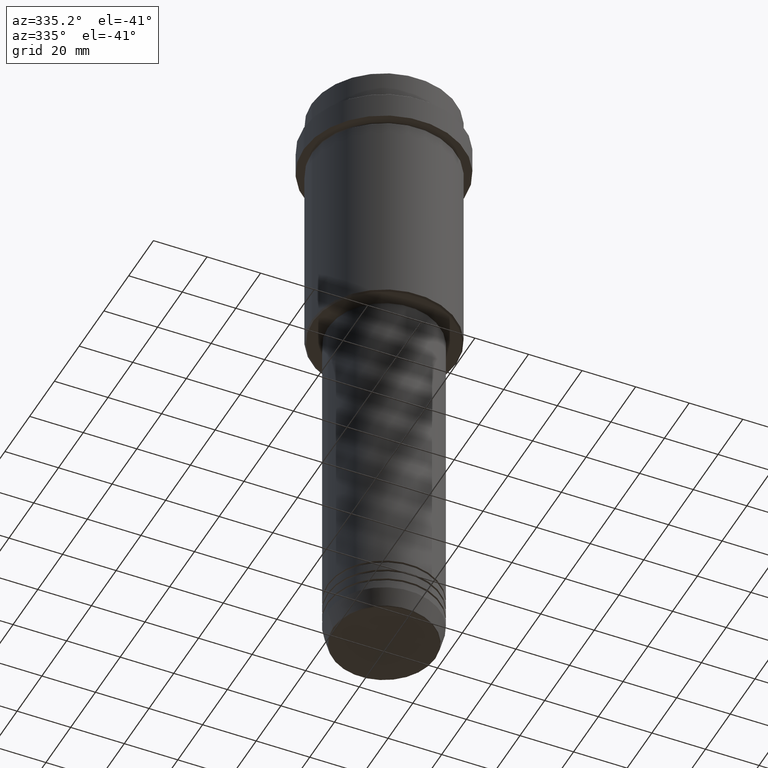
[diagram: clean part render]
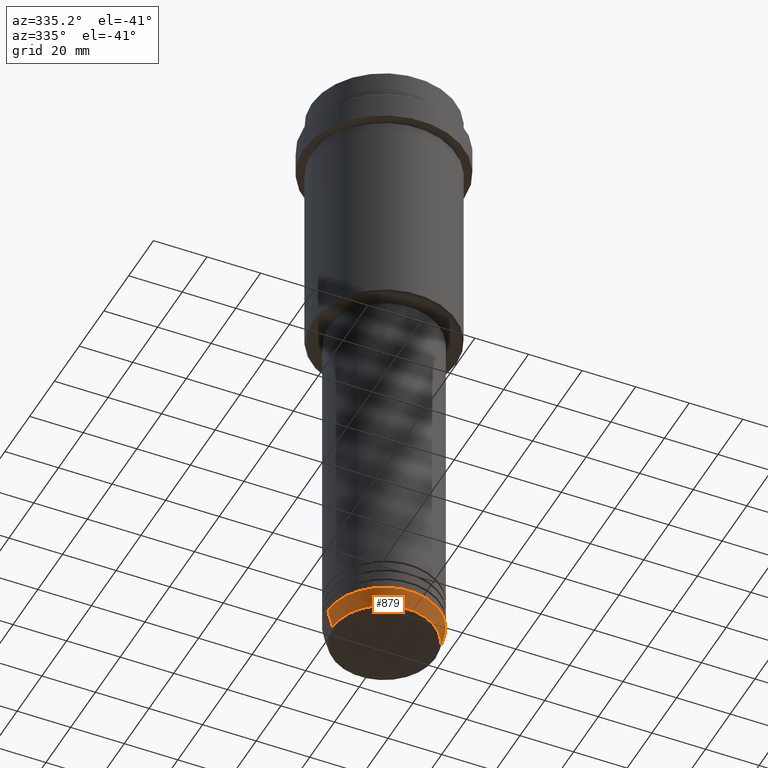
[diagram: same view with one face highlighted and labeled with its STEP entity id]
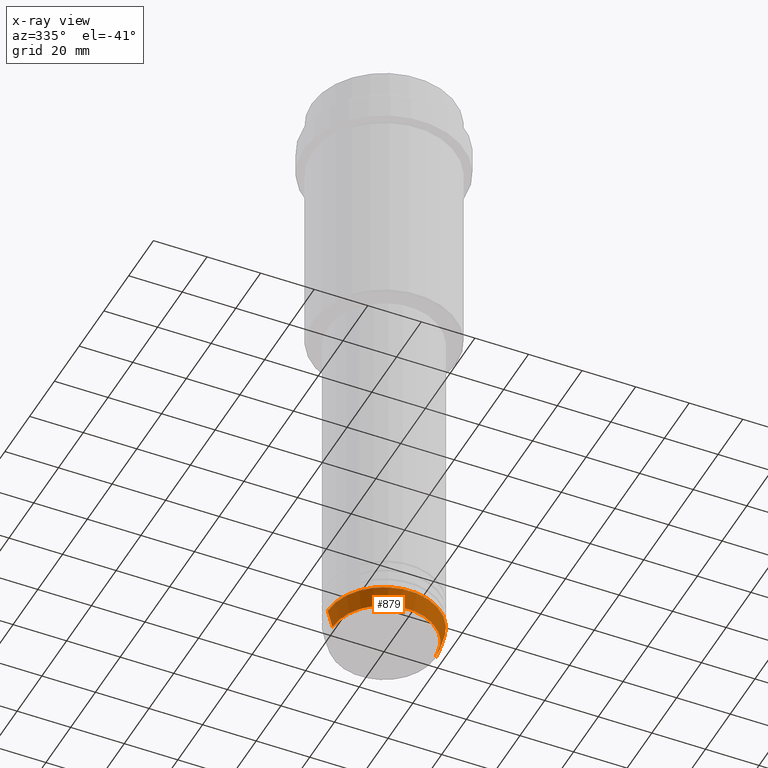
[diagram: x-ray of the same camera — body ghosted, the highlighted face saturated]
A machine part, auxiliary view. The second image highlights one B-rep face of the part: STEP entity #879.
The next image is the same camera in x-ray: the body ghosted, the highlighted face saturated — about 0% of this face is hidden behind the body in this view.
In plain terms, the highlighted conical surface has half-angle 15 deg.
Its self-contained STEP definition (entity closure, byte-faithful):
#71 = ORIENTED_EDGE ( 'NONE', *, *, #571, .T. ) ;
#74 = AXIS2_PLACEMENT_3D ( 'NONE', #1097, #1077, #983 ) ;
#99 = AXIS2_PLACEMENT_3D ( 'NONE', #712, #1049, #828 ) ;
#124 = CIRCLE ( 'NONE', #74, 19.22365507213719837 ) ;
#137 = CARTESIAN_POINT ( 'NONE',  ( 21.00000000000000000, 0.000000000000000000, -225.9999999999999716 ) ) ;
#141 = EDGE_CURVE ( 'NONE', #241, #963, #1400, .T. ) ;
#187 = CARTESIAN_POINT ( 'NONE',  ( -21.00000000000000000, 2.571758278209441661E-15, -225.9999999999999716 ) ) ;
#196 = ORIENTED_EDGE ( 'NONE', *, *, #429, .T. ) ;
#198 = VECTOR ( 'NONE', #566, 1000.000000000000000 ) ;
#200 = VERTEX_POINT ( 'NONE', #1078 ) ;
#241 = VERTEX_POINT ( 'NONE', #756 ) ;
#270 = CIRCLE ( 'NONE', #1209, 21.00000000000000000 ) ;
#313 = VERTEX_POINT ( 'NONE', #791 ) ;
#377 = CARTESIAN_POINT ( 'NONE',  ( 0.000000000000000000, 0.000000000000000000, -225.9999999999999716 ) ) ;
#429 = EDGE_CURVE ( 'NONE', #313, #200, #1115, .T. ) ;
#490 = EDGE_LOOP ( 'NONE', ( #815, #71, #196, #707 ) ) ;
#566 = DIRECTION ( 'NONE',  ( 0.2588190451025209060, 0.000000000000000000, 0.9659258262890682012 ) ) ;
#571 = EDGE_CURVE ( 'NONE', #241, #313, #124, .T. ) ;
#707 = ORIENTED_EDGE ( 'NONE', *, *, #999, .F. ) ;
#712 = CARTESIAN_POINT ( 'NONE',  ( 0.000000000000000000, 0.000000000000000000, -225.9999999999999716 ) ) ;
#756 = CARTESIAN_POINT ( 'NONE',  ( -19.22365507213719837, 2.462988521705001444E-15, -232.6294095225512706 ) ) ;
#791 = CARTESIAN_POINT ( 'NONE',  ( 19.22365507213719837, 0.000000000000000000, -232.6294095225512706 ) ) ;
#815 = ORIENTED_EDGE ( 'NONE', *, *, #141, .F. ) ;
#816 = DIRECTION ( 'NONE',  ( -0.000000000000000000, -0.000000000000000000, 1.000000000000000000 ) ) ;
#828 = DIRECTION ( 'NONE',  ( 1.000000000000000000, 0.000000000000000000, 0.000000000000000000 ) ) ;
#879 = ADVANCED_FACE ( 'NONE', ( #1248 ), #1127, .T. ) ;
#963 = VERTEX_POINT ( 'NONE', #1163 ) ;
#964 = DIRECTION ( 'NONE',  ( -0.2588190451025209060, 3.169619151431766790E-17, 0.9659258262890682012 ) ) ;
#983 = DIRECTION ( 'NONE',  ( 1.000000000000000000, 0.000000000000000000, 0.000000000000000000 ) ) ;
#999 = EDGE_CURVE ( 'NONE', #963, #200, #270, .T. ) ;
#1049 = DIRECTION ( 'NONE',  ( -0.000000000000000000, -0.000000000000000000, 1.000000000000000000 ) ) ;
#1077 = DIRECTION ( 'NONE',  ( -0.000000000000000000, -0.000000000000000000, 1.000000000000000000 ) ) ;
#1078 = CARTESIAN_POINT ( 'NONE',  ( 21.00000000000000000, 0.000000000000000000, -225.9999999999999716 ) ) ;
#1097 = CARTESIAN_POINT ( 'NONE',  ( 0.000000000000000000, 0.000000000000000000, -232.6294095225512706 ) ) ;
#1115 = LINE ( 'NONE', #137, #198 ) ;
#1127 = CONICAL_SURFACE ( 'NONE', #99, 21.00000000000000000, 0.2617993877991495744 ) ;
#1163 = CARTESIAN_POINT ( 'NONE',  ( -21.00000000000000000, 2.571758278209441661E-15, -225.9999999999999716 ) ) ;
#1192 = VECTOR ( 'NONE', #964, 1000.000000000000000 ) ;
#1209 = AXIS2_PLACEMENT_3D ( 'NONE', #377, #816, #1274 ) ;
#1248 = FACE_OUTER_BOUND ( 'NONE', #490, .T. ) ;
#1274 = DIRECTION ( 'NONE',  ( 1.000000000000000000, 0.000000000000000000, 0.000000000000000000 ) ) ;
#1400 = LINE ( 'NONE', #187, #1192 ) ;